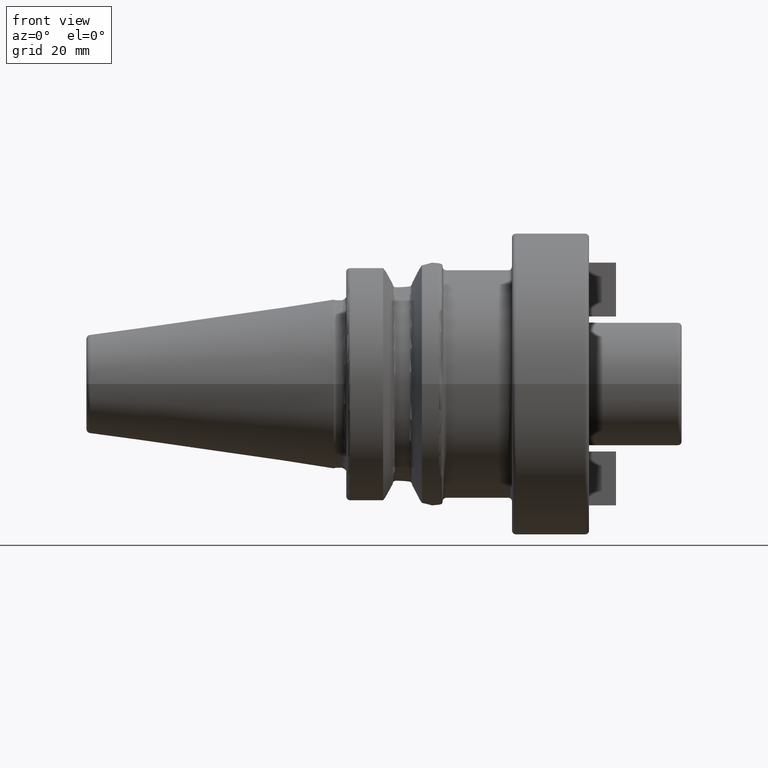
[diagram: clean part render]
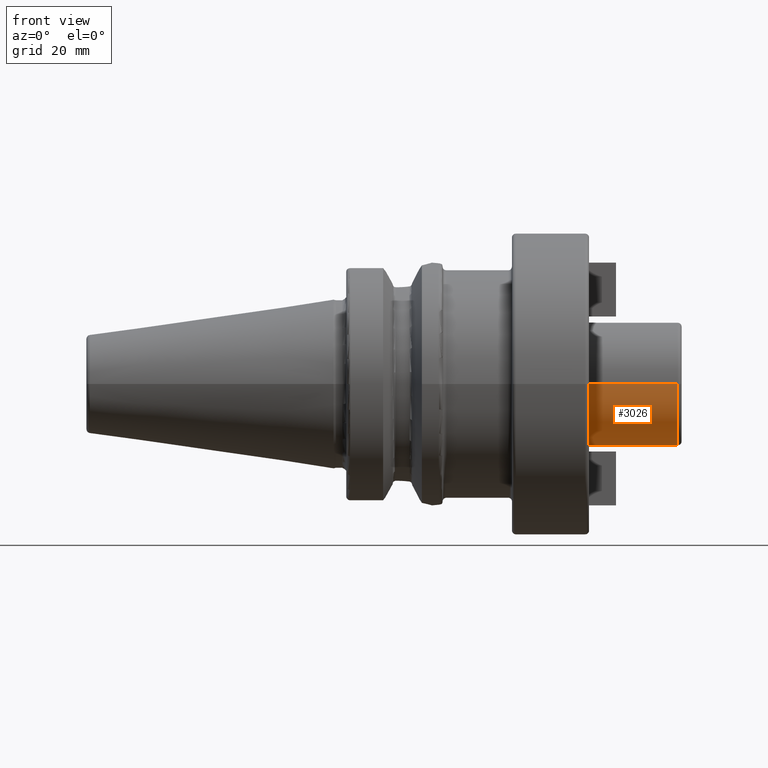
[diagram: same view with one face highlighted and labeled with its STEP entity id]
A machine part, front view. The second image highlights one B-rep face of the part: STEP entity #3026.
In plain terms, the highlighted cylindrical surface (partial cylindrical patch) has radius 16 mm, axis along (1, 0, 0).
Its self-contained STEP definition (entity closure, byte-faithful):
#957=CARTESIAN_POINT('',(6.5E1,0.E0,0.E0));
#958=DIRECTION('',(-1.E0,0.E0,0.E0));
#959=DIRECTION('',(0.E0,1.E0,0.E0));
#960=AXIS2_PLACEMENT_3D('',#957,#958,#959);
#1019=CARTESIAN_POINT('',(8.8E1,0.E0,0.E0));
#1020=DIRECTION('',(-1.E0,0.E0,0.E0));
#1021=DIRECTION('',(0.E0,1.E0,0.E0));
#1022=AXIS2_PLACEMENT_3D('',#1019,#1020,#1021);
#1024=DIRECTION('',(-1.E0,0.E0,1.820194479873E-14));
#1025=VECTOR('',#1024,2.3E1);
#1026=CARTESIAN_POINT('',(8.8E1,1.6E1,-4.173384404516E-13));
#1027=LINE('',#1026,#1025);
#1028=DIRECTION('',(-1.E0,0.E0,-1.802618078140E-14));
#1029=VECTOR('',#1028,2.3E1);
#1030=CARTESIAN_POINT('',(8.8E1,-1.6E1,4.132958680532E-13));
#1031=LINE('',#1030,#1029);
#1581=CARTESIAN_POINT('',(6.5E1,1.6E1,0.E0));
#1582=CARTESIAN_POINT('',(6.5E1,-1.6E1,0.E0));
#1583=VERTEX_POINT('',#1581);
#1584=VERTEX_POINT('',#1582);
#1593=CARTESIAN_POINT('',(8.8E1,1.6E1,0.E0));
#1594=CARTESIAN_POINT('',(8.8E1,-1.6E1,0.E0));
#1595=VERTEX_POINT('',#1593);
#1596=VERTEX_POINT('',#1594);
#3015=CARTESIAN_POINT('',(2.39E1,0.E0,0.E0));
#3016=DIRECTION('',(1.E0,0.E0,0.E0));
#3017=DIRECTION('',(0.E0,-1.E0,0.E0));
#3018=AXIS2_PLACEMENT_3D('',#3015,#3016,#3017);
#3019=CYLINDRICAL_SURFACE('',#3018,1.6E1);
#3020=ORIENTED_EDGE('',*,*,#3006,.F.);
#3021=ORIENTED_EDGE('',*,*,#2981,.T.);
#3022=ORIENTED_EDGE('',*,*,#2946,.T.);
#3023=ORIENTED_EDGE('',*,*,#2978,.F.);
#3024=EDGE_LOOP('',(#3020,#3021,#3022,#3023));
#3025=FACE_OUTER_BOUND('',#3024,.F.);
#3026=ADVANCED_FACE('',(#3025),#3019,.T.);
#961=CIRCLE('',#960,1.6E1);
#1023=CIRCLE('',#1022,1.6E1);
#2946=EDGE_CURVE('',#1583,#1584,#961,.T.);
#2978=EDGE_CURVE('',#1596,#1584,#1031,.T.);
#2981=EDGE_CURVE('',#1595,#1583,#1027,.T.);
#3006=EDGE_CURVE('',#1595,#1596,#1023,.T.);